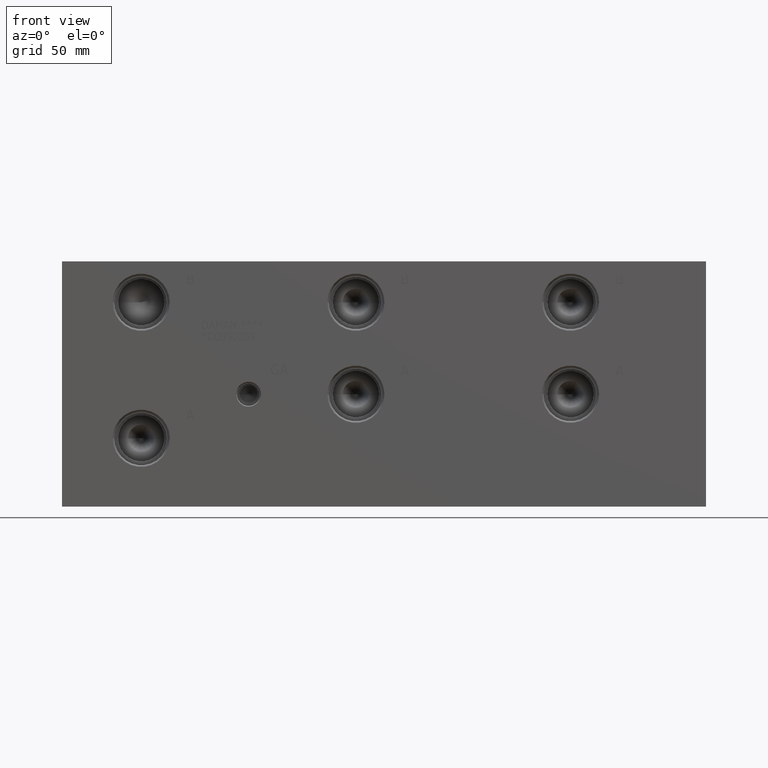
[diagram: clean part render]
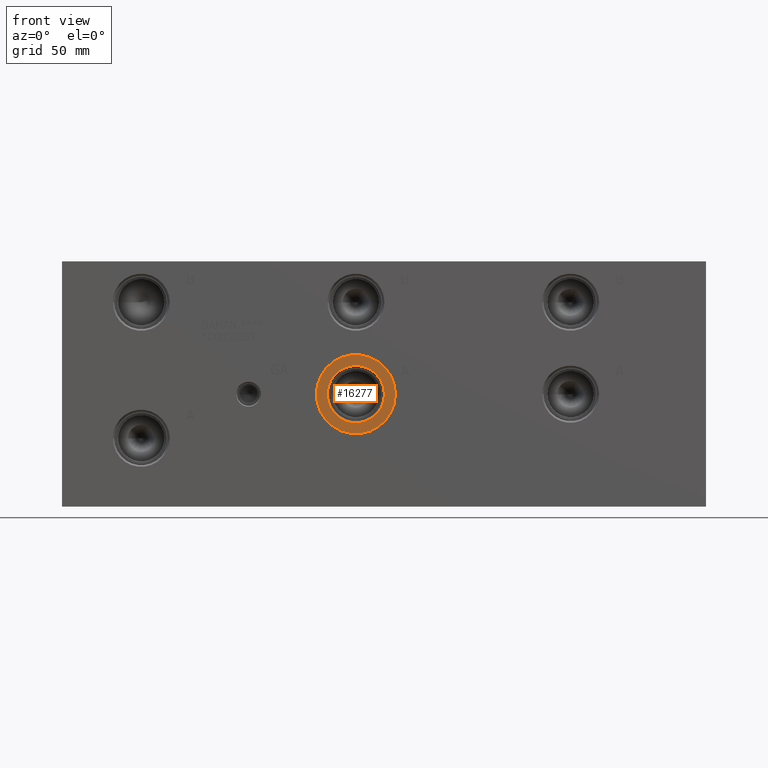
[diagram: same view with one face highlighted and labeled with its STEP entity id]
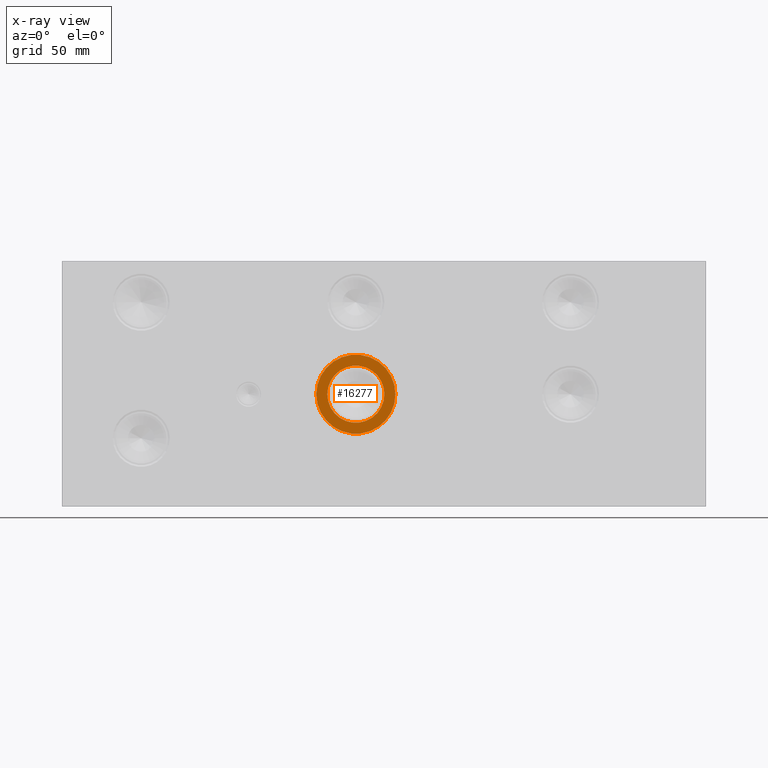
[diagram: x-ray of the same camera — body ghosted, the highlighted face saturated]
A machine part, front view. The second image highlights one B-rep face of the part: STEP entity #16277.
The next image is the same camera in x-ray: the body ghosted, the highlighted face saturated — about 0% of this face is hidden behind the body in this view.
In plain terms, the highlighted planar face has unit normal (0, -1, 0).
Its self-contained STEP definition (entity closure, byte-faithful):
#527=CIRCLE('',#17223,24.5618);
#528=CIRCLE('',#17224,24.5618);
#529=CIRCLE('',#17225,17.7546);
#881=FACE_BOUND('',#3156,.T.);
#2213=FACE_OUTER_BOUND('',#3155,.T.);
#3155=EDGE_LOOP('',(#13732,#13733));
#3156=EDGE_LOOP('',(#13734));
#7444=VERTEX_POINT('',#27731);
#7445=VERTEX_POINT('',#27732);
#7446=VERTEX_POINT('',#27735);
#9646=EDGE_CURVE('',#7444,#7445,#527,.T.);
#9647=EDGE_CURVE('',#7445,#7444,#528,.T.);
#9648=EDGE_CURVE('',#7446,#7446,#529,.T.);
#13732=ORIENTED_EDGE('',*,*,#9646,.T.);
#13733=ORIENTED_EDGE('',*,*,#9647,.T.);
#13734=ORIENTED_EDGE('',*,*,#9648,.F.);
#15020=PLANE('',#17222);
#16277=ADVANCED_FACE('',(#2213,#881),#15020,.T.);
#17222=AXIS2_PLACEMENT_3D('',#27730,#20439,#20440);
#17223=AXIS2_PLACEMENT_3D('',#27733,#20441,#20442);
#17224=AXIS2_PLACEMENT_3D('',#27734,#20443,#20444);
#17225=AXIS2_PLACEMENT_3D('',#27736,#20445,#20446);
#20439=DIRECTION('center_axis',(0.,-1.,0.));
#20440=DIRECTION('ref_axis',(1.,0.,0.));
#20441=DIRECTION('center_axis',(0.,-1.,0.));
#20442=DIRECTION('ref_axis',(1.,0.,0.));
#20443=DIRECTION('center_axis',(0.,-1.,0.));
#20444=DIRECTION('ref_axis',(1.,0.,0.));
#20445=DIRECTION('center_axis',(0.,-1.,0.));
#20446=DIRECTION('ref_axis',(1.,0.,0.));
#27730=CARTESIAN_POINT('Origin',(182.5498,0.7874,69.85));
#27731=CARTESIAN_POINT('',(207.1116,0.7874,69.85));
#27732=CARTESIAN_POINT('',(157.988,0.7874,69.85));
#27733=CARTESIAN_POINT('Origin',(182.5498,0.7874,69.85));
#27734=CARTESIAN_POINT('Origin',(182.5498,0.7874,69.85));
#27735=CARTESIAN_POINT('',(164.7952,0.7874,69.85));
#27736=CARTESIAN_POINT('Origin',(182.5498,0.7874,69.85));